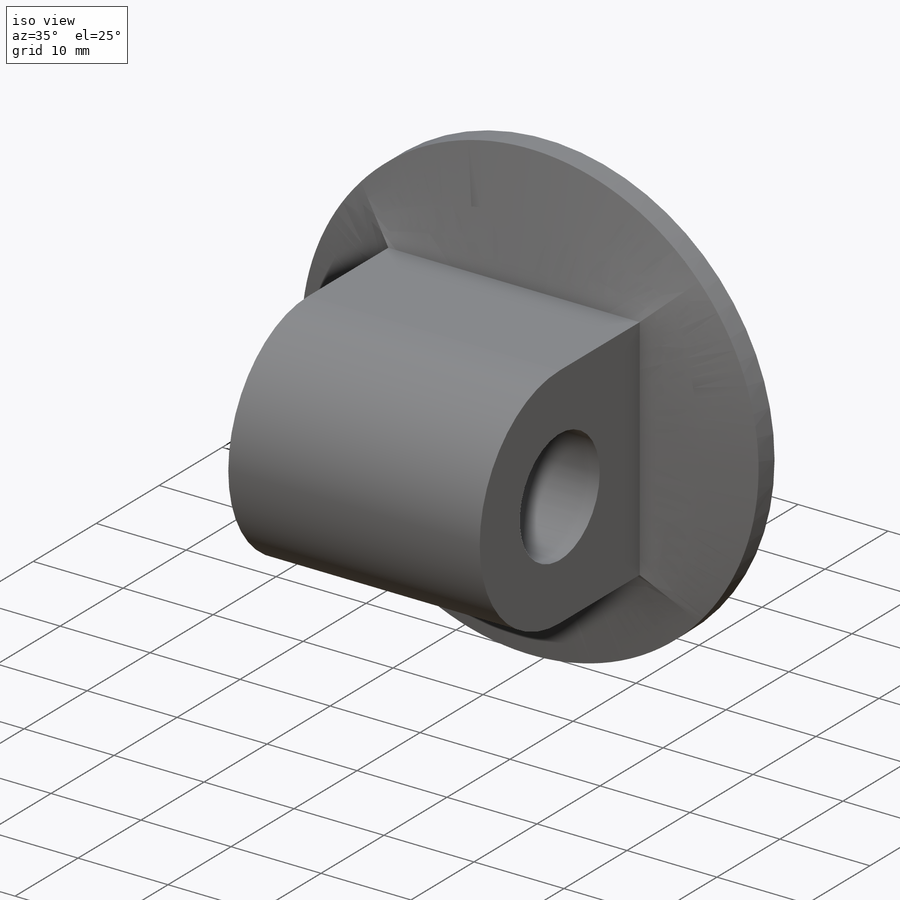
[diagram: iso view]
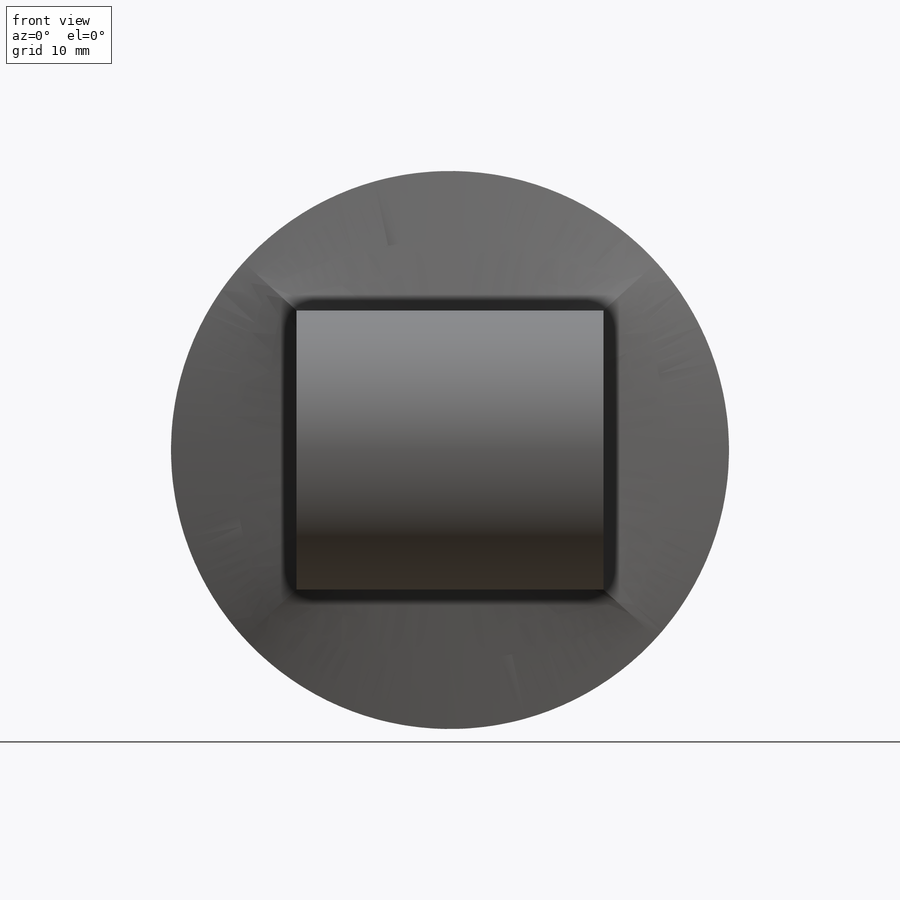
[diagram: front view]
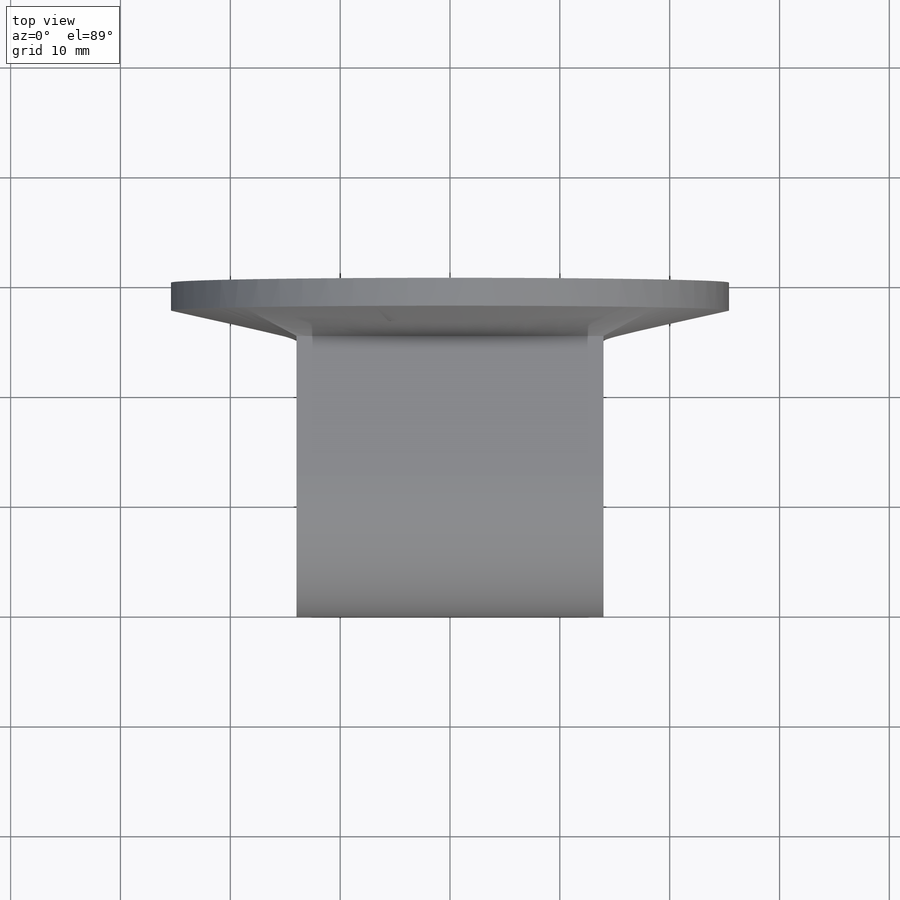
[diagram: top view]
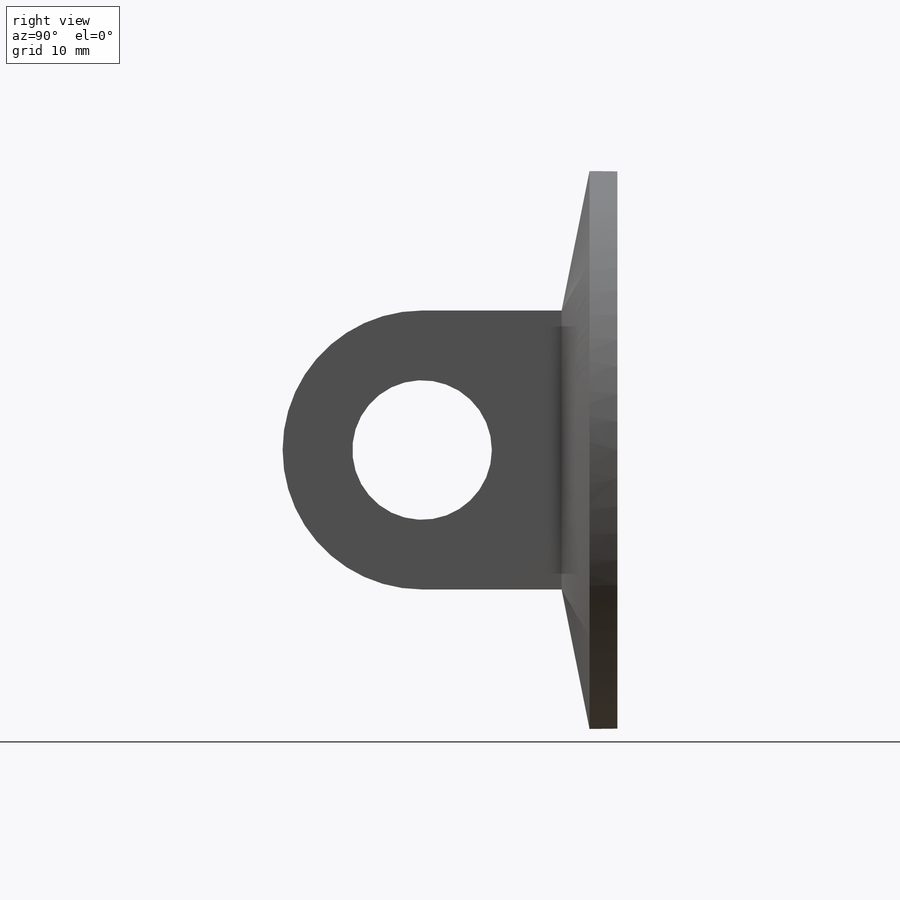
[diagram: right view]
SOLIDWORKS PART (.sldprt)
format: sldprt  version: not decoded by parser v0  size: 219,136 bytes
history: native  units: mm
features: sketch x6, extrude x2, cut_extrude x2, material x1, plane x1, mirror x1 (+14 scaffold rows collapsed)
feature tree (27):
  scaffold x14  (default folders/planes/origin — collapsed)
  material  "Material <not specified>"
  sketch  "Sketch1"  dims[c1.D1=44.45mm c1.D3=25.4mm c1.D2=38.1mm c2.D1=6.35mm c2.D2=6.35mm]
  extrude  "Boss-Extrude1"  Depth=2.54mm
  sketch  "Sketch2"  dims[D1=12.7mm D2=15.24mm]
  sketch  "Sketch3"  dims[D1=0.0mm]
  plane  "Plane2"  Offset=2.54mm
  sketch  "Sketch4"  dims[D1=25.4mm D2=27.94mm]
  sketch  "Sketch5"  dims[D1=0.0mm]
  extrude  "Boss-Extrude2"  Depth=25.4mm
  cut_extrude  "Cut-Extrude1"  [1 undecoded]
  sketch  "Sketch10"
  cut_extrude  "Cut-Extrude4"  [1 undecoded]
  mirror  "Mirror2"
decode coverage: 7 of 11 modeling features carry decoded parameters
note: 2 parameter values undecoded
note: suppression state not decoded; provenance and decode notes live in map.json
